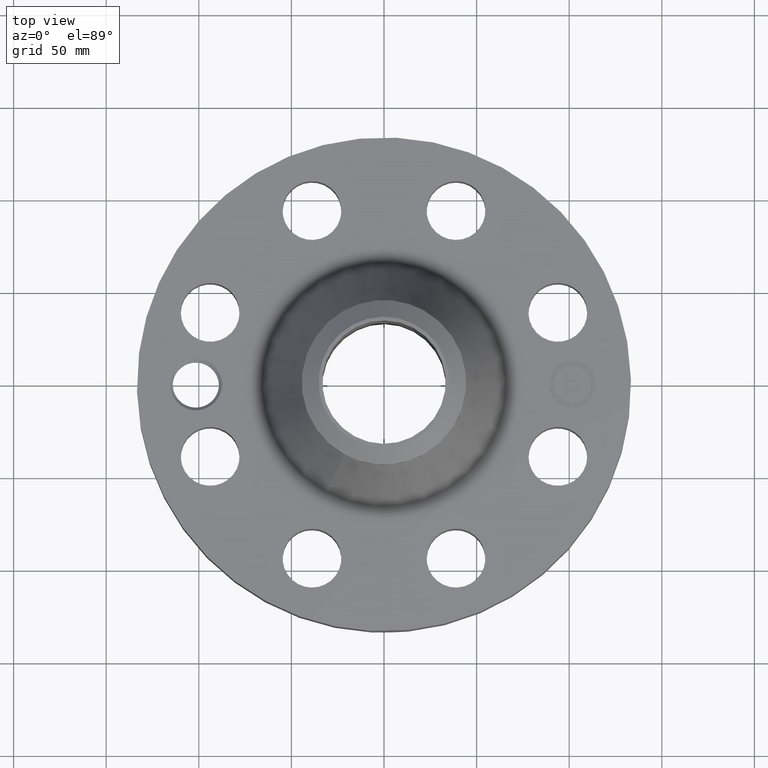
[diagram: clean part render]
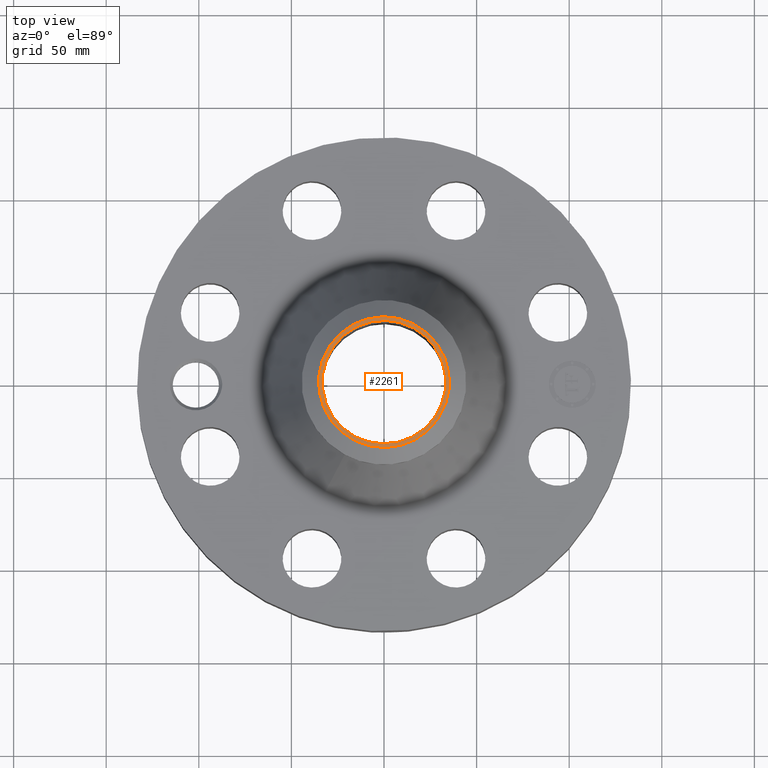
[diagram: same view with one face highlighted and labeled with its STEP entity id]
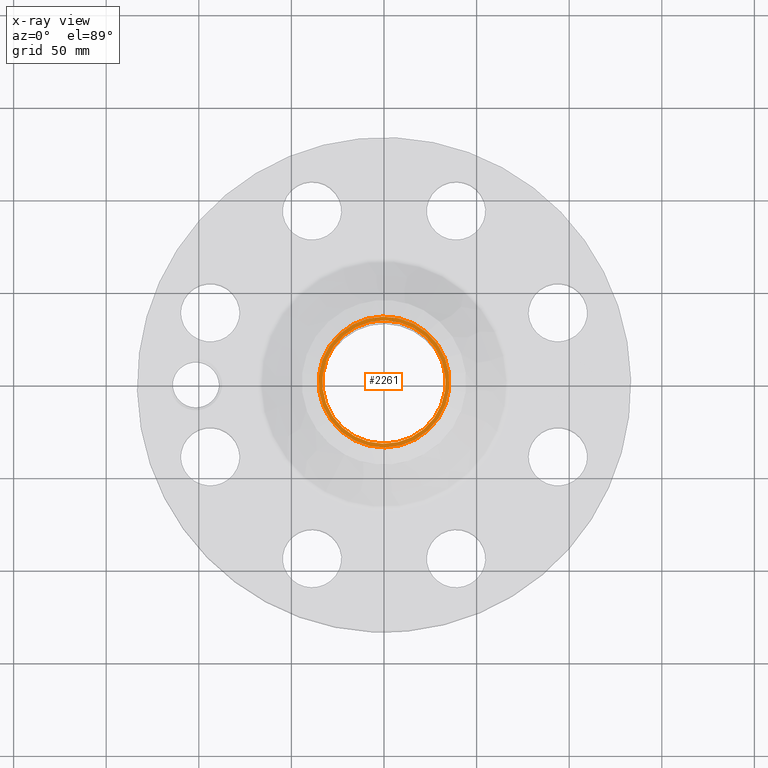
[diagram: x-ray of the same camera — body ghosted, the highlighted face saturated]
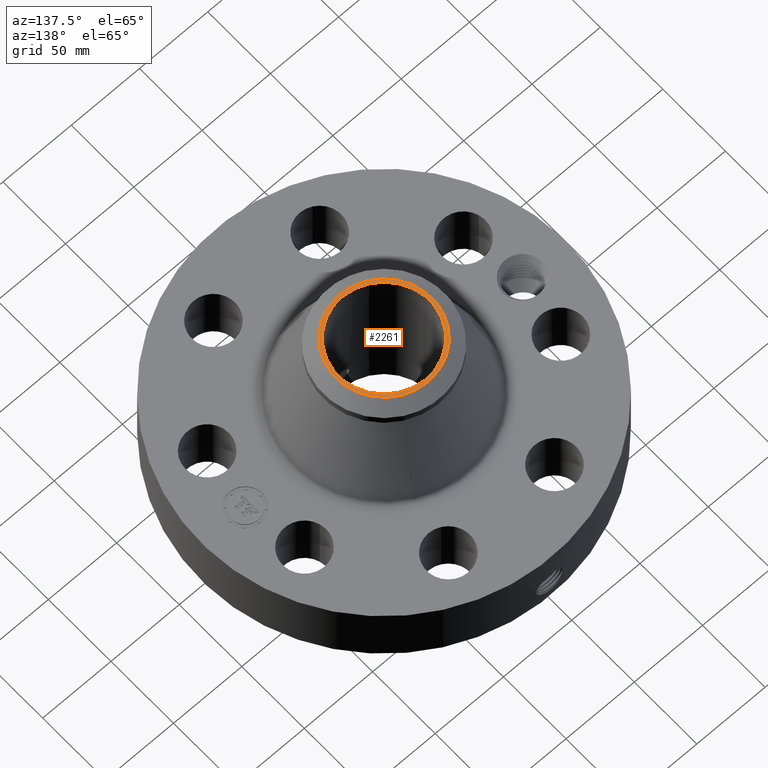
[diagram: same view with one face highlighted and labeled with its STEP entity id]
A machine part, top view. The second image highlights one B-rep face of the part: STEP entity #2261.
The next image is the same camera in x-ray: the body ghosted, the highlighted face saturated — about 0% of this face is hidden behind the body in this view.
A second angle (auxiliary view) of the same face is appended — the face is thin or edge-on in the first view.
In plain terms, the highlighted planar face has unit normal (0, 0, -1).
Its self-contained STEP definition (entity closure, byte-faithful):
#1163=AXIS2_PLACEMENT_3D('Circle Axis2P3D',#1161,#1162,$) ;
#1231=AXIS2_PLACEMENT_3D('Circle Axis2P3D',#1229,#1230,$) ;
#2237=AXIS2_PLACEMENT_3D('Plane Axis2P3D',#2234,#2235,#2236) ;
#2241=AXIS2_PLACEMENT_3D('Circle Axis2P3D',#2239,#2240,$) ;
#2250=AXIS2_PLACEMENT_3D('Circle Axis2P3D',#2248,#2249,$) ;
#1161=CARTESIAN_POINT('Axis2P3D Location',(0.,0.,4.87000000002)) ;
#1165=CARTESIAN_POINT('Vertex',(0.629006306651,1.1513883212,4.87000000002)) ;
#1167=CARTESIAN_POINT('Vertex',(-0.629006306651,-1.1513883212,4.87000000002)) ;
#1229=CARTESIAN_POINT('Axis2P3D Location',(0.,0.,4.87000000002)) ;
#2234=CARTESIAN_POINT('Axis2P3D Location',(0.,1.75000000001,4.87000000002)) ;
#2239=CARTESIAN_POINT('Axis2P3D Location',(0.,0.,4.87000000002)) ;
#2243=CARTESIAN_POINT('Vertex',(0.666756349061,-1.22048931033,4.87000000002)) ;
#2245=CARTESIAN_POINT('Vertex',(-0.666756349061,1.22048931033,4.87000000002)) ;
#2248=CARTESIAN_POINT('Axis2P3D Location',(0.,0.,4.87000000002)) ;
#1162=DIRECTION('Axis2P3D Direction',(0.,0.,-0.0393700787402)) ;
#1230=DIRECTION('Axis2P3D Direction',(0.,0.,-0.0393700787402)) ;
#2235=DIRECTION('Axis2P3D Direction',(0.,0.,-0.0393700787402)) ;
#2236=DIRECTION('Axis2P3D XDirection',(0.0393700787402,0.,0.)) ;
#2240=DIRECTION('Axis2P3D Direction',(0.,0.,-0.0393700787402)) ;
#2249=DIRECTION('Axis2P3D Direction',(0.,0.,-0.0393700787402)) ;
#2254=ORIENTED_EDGE('',*,*,#2247,.T.) ;
#2255=ORIENTED_EDGE('',*,*,#2252,.T.) ;
#2258=ORIENTED_EDGE('',*,*,#1233,.T.) ;
#2259=ORIENTED_EDGE('',*,*,#1169,.T.) ;
#2260=FACE_BOUND('',#2257,.T.) ;
#2261=ADVANCED_FACE('PartBody',(#2256,#2260),#2238,.F.) ;
#1164=CIRCLE('generated circle',#1163,1.31200000001) ;
#1232=CIRCLE('generated circle',#1231,1.31200000001) ;
#2242=CIRCLE('generated circle',#2241,1.39074015749) ;
#2251=CIRCLE('generated circle',#2250,1.39074015749) ;
#1169=EDGE_CURVE('',#1166,#1168,#1164,.T.) ;
#1233=EDGE_CURVE('',#1168,#1166,#1232,.T.) ;
#2247=EDGE_CURVE('',#2244,#2246,#2242,.F.) ;
#2252=EDGE_CURVE('',#2246,#2244,#2251,.F.) ;
#2253=EDGE_LOOP('',(#2254,#2255)) ;
#2257=EDGE_LOOP('',(#2258,#2259)) ;
#2256=FACE_OUTER_BOUND('',#2253,.T.) ;
#2238=PLANE('',#2237) ;
#1166=VERTEX_POINT('',#1165) ;
#1168=VERTEX_POINT('',#1167) ;
#2244=VERTEX_POINT('',#2243) ;
#2246=VERTEX_POINT('',#2245) ;